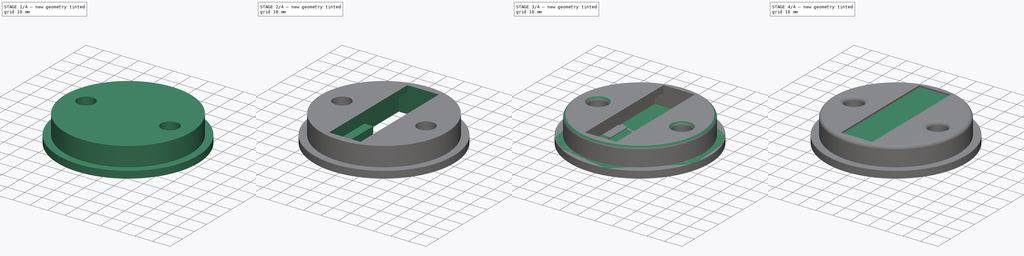
[diagram: build sequence overview — one tinted view per stage of 4, left to right]
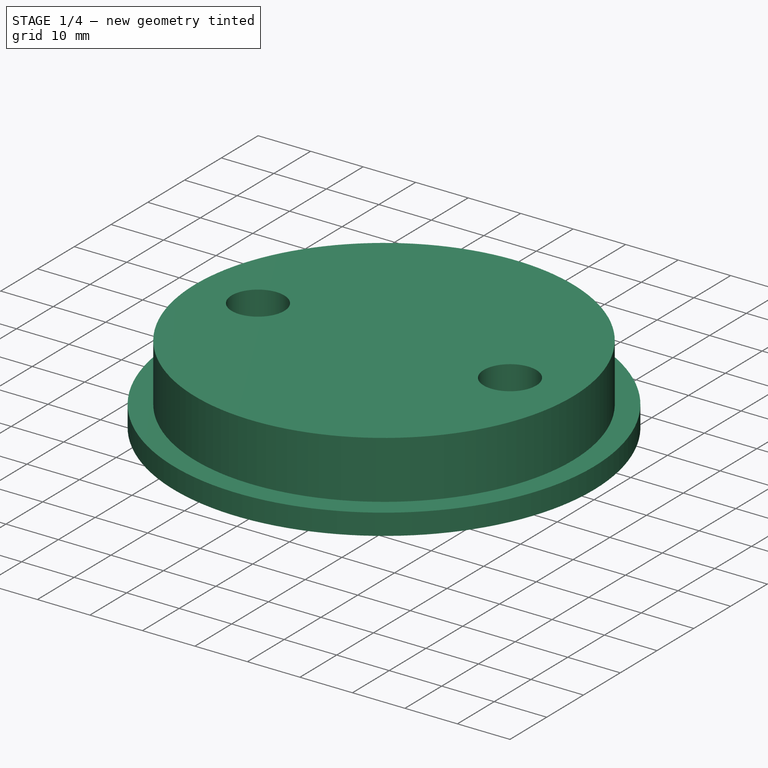
[diagram: stage 1 of 4 — iso view after this stage's code; geometry added in this stage tinted green]
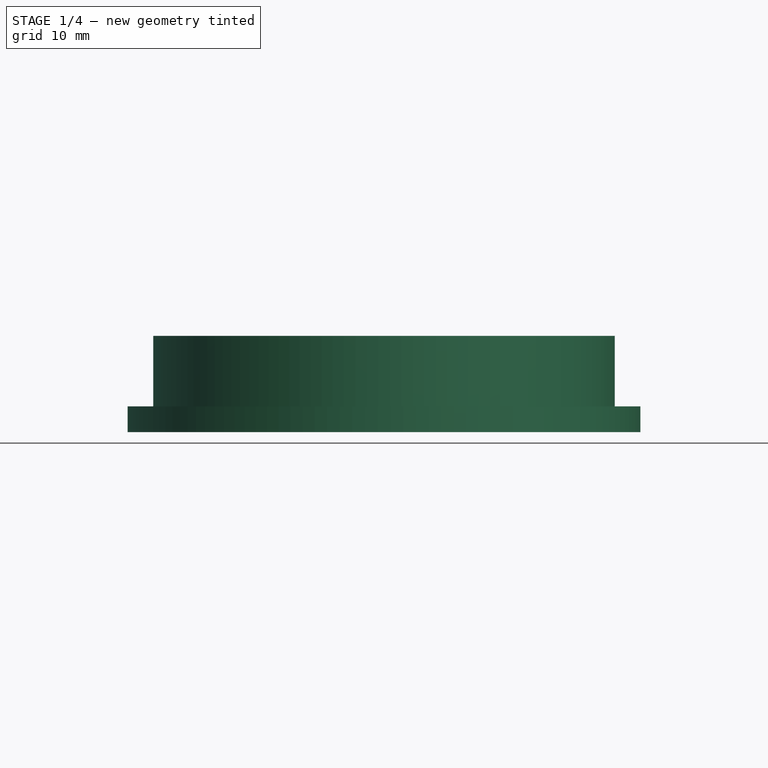
[diagram: stage 1 of 4 — front view after this stage's code; geometry added in this stage tinted green]
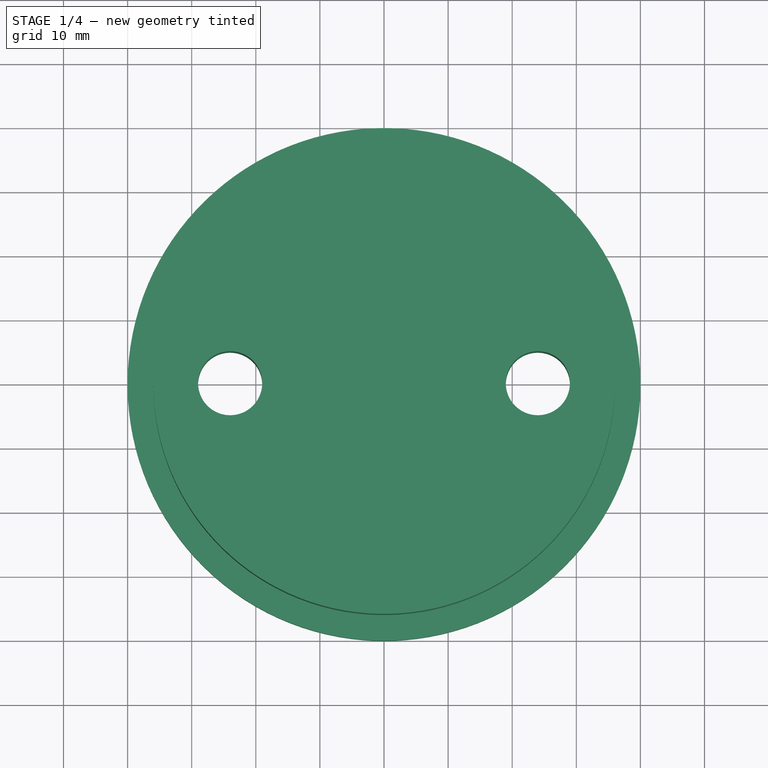
[diagram: stage 1 of 4 — top view after this stage's code; geometry added in this stage tinted green]
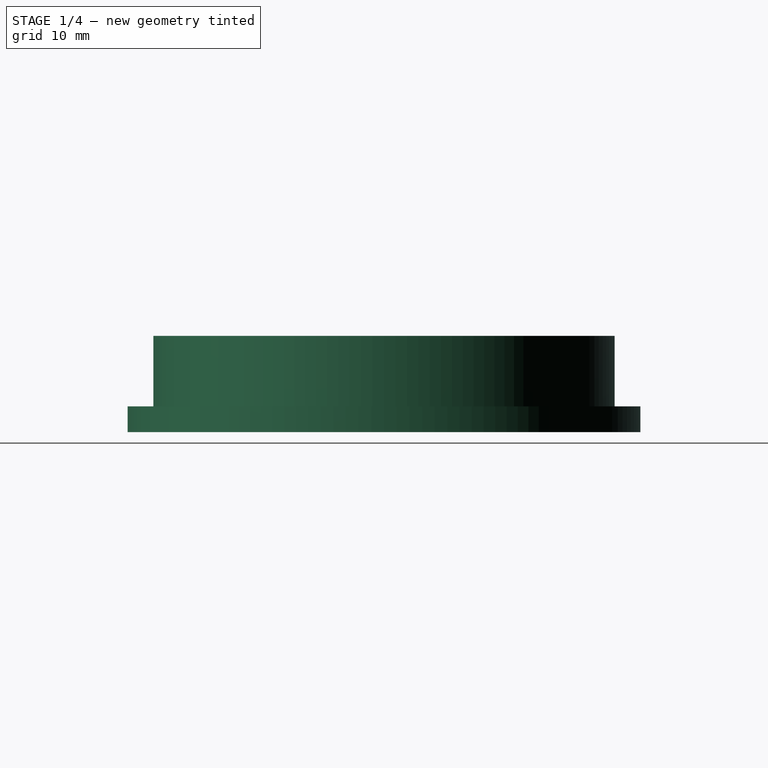
[diagram: stage 1 of 4 — right view after this stage's code; geometry added in this stage tinted green]
FCSTD DOCUMENT  (FreeCAD 0.21R33771 (Git))
Label: temperature-control-units-lids
License: All rights reserved
LicenseURL: https://en.wikipedia.org/wiki/All_rights_reserved
objects: Sketcher::SketchObject×9, PartDesign::Pocket×5, PartDesign::Pad×4, PartDesign::Fillet×2, PartDesign::Body×2, Spreadsheet::Sheet×1, PartDesign::Chamfer×1
note: 35 computed .brp shape members not serialized (recipe doc carries the construction recipe); baked Part::Feature solids carry a one-line shape summary decoded from their .brp

FEATURE [Sketcher::SketchObject] Sketch
  FullyConstrained = true
  MapMode = 5
  Support = -> [XY_Plane]
  expr: Constraints[1] = Spreadsheet.outerDiameter
  sketch-geometry (1):
    g0: Circle CenterX=0 CenterY=0 CenterZ=0 NormalX=0 NormalY=0 NormalZ=1 AngleXU=0 Radius=40
  constraints (2):
    c: Coincident(g0,g-1)
    c: Diameter(g0) = 80
FEATURE [PartDesign::Pad] Pad  label="Lid"
  Direction = (0,0,1)
  Length = 4
  Length2 = 10
  Profile = -> Sketch
  ReferenceAxis = -> Sketch [N_Axis]
  Type = 0
FEATURE [Sketcher::SketchObject] Sketch001
  FullyConstrained = true
  MapMode = 5
  Placement = pos=(0,0,4) rot=(0,0,1;0rad)
  Support = -> [Pad]
  expr: Constraints[1] = Spreadsheet.innerDiameter
  sketch-geometry (1):
    g0: Circle CenterX=0 CenterY=0 CenterZ=0 NormalX=0 NormalY=0 NormalZ=1 AngleXU=0 Radius=36
  constraints (2):
    c: Coincident(g0,g-1)
    c: Diameter(g0) = 72
FEATURE [PartDesign::Pad] Pad001  label="Column"
  BaseFeature = -> Pad
  Direction = (0,0,1)
  Length = 11
  Length2 = 10
  Profile = -> Sketch001
  ReferenceAxis = -> Sketch001 [N_Axis]
  Type = 0
FEATURE [PartDesign::Body] Body001  label="Cold Lid"
  Group = -> [Sketch002,Pad002,Sketch003,Pad003,Sketch004,Pocket,Fillet]
  Origin = -> Origin001
  Placement = pos=(100,0,0) rot=(0,0,1;0rad)
  Tip = -> Fillet
FEATURE [Spreadsheet::Sheet] Spreadsheet
  cells = C4='outerDiameter; D4(outerDiameter)=80; C5='innerDiameter; D5(innerDiameter)=72; C7='tubeHoleDiameter; D7(tubeHoleDiameter)=10; C9='heaterHoleOffset; D9(heaterHoleOffset)=0; C10='heaterHoleLength; D10(heaterHoleLength)=64; C11='heaterHoleWidth; D11(heaterHoleWidth)=18; C13='heaterHolderWidth; D13(heaterHolderWidth)=28; C14='heaterCatchWidth; D14(heaterCatchWidth)=22
FEATURE [Sketcher::SketchObject] Sketch005
  FullyConstrained = true
  MapMode = 5
  Placement = pos=(0,0,15) rot=(0,0,1;0rad)
  Support = -> [Pad001]
  expr: Constraints[2] = Spreadsheet.tubeHoleDiameter
  sketch-geometry (2):
    g0: Circle CenterX=-24 CenterY=0 CenterZ=0 NormalX=0 NormalY=0 NormalZ=1 AngleXU=0 Radius=5
    g1: Circle CenterX=24 CenterY=0 CenterZ=0 NormalX=0 NormalY=0 NormalZ=1 AngleXU=0 Radius=5
  constraints (5):
    c: PointOnObject(g0,g-1)
    c: Equal(g0,g1)
    c: Diameter(g0) = 10
    c: DistanceX(g0,g-1) = 24
    c: Symmetric(g0,g1,g-1)
FEATURE [PartDesign::Pocket] Pocket001  label="Tube Holes"
  BaseFeature = -> Pad001
  Direction = (0,0,-1)
  Length = 0
  Length2 = 5
  Profile = -> Sketch005
  ReferenceAxis = -> Sketch005 [N_Axis]
  Type = 2
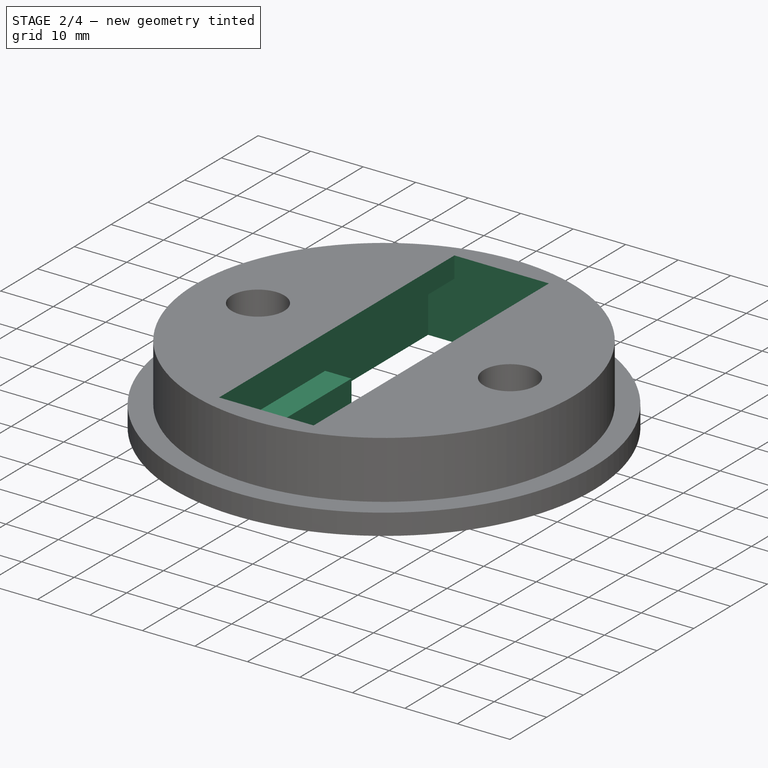
[diagram: stage 2 of 4 — iso view after this stage's code; geometry added in this stage tinted green]
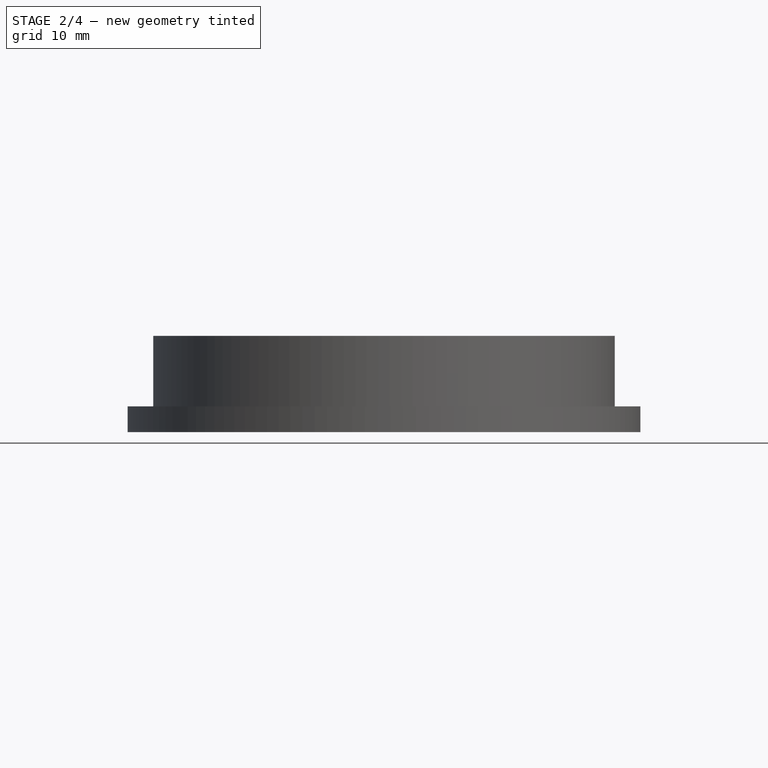
[diagram: stage 2 of 4 — front view after this stage's code; geometry added in this stage tinted green]
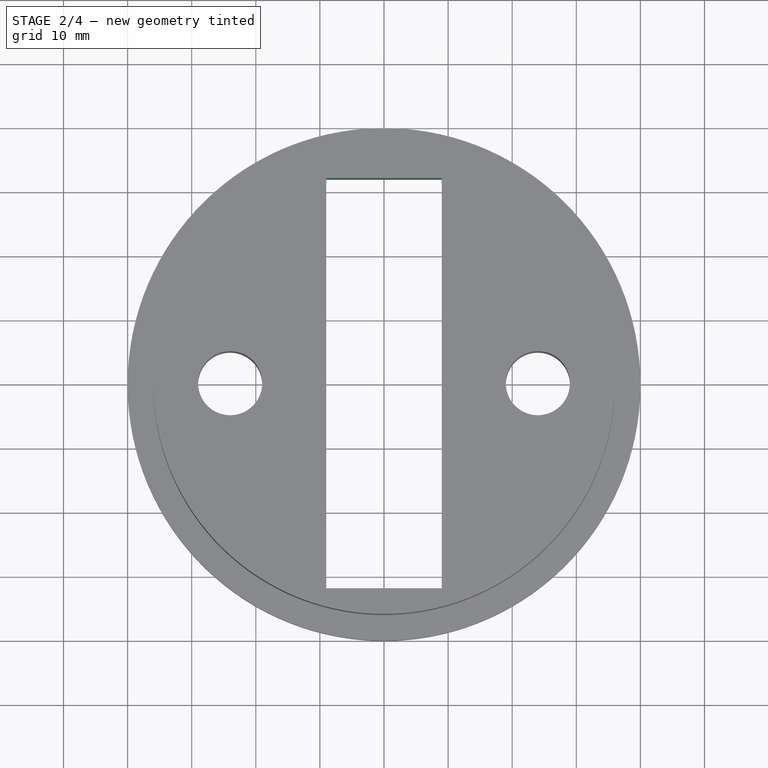
[diagram: stage 2 of 4 — top view after this stage's code; geometry added in this stage tinted green]
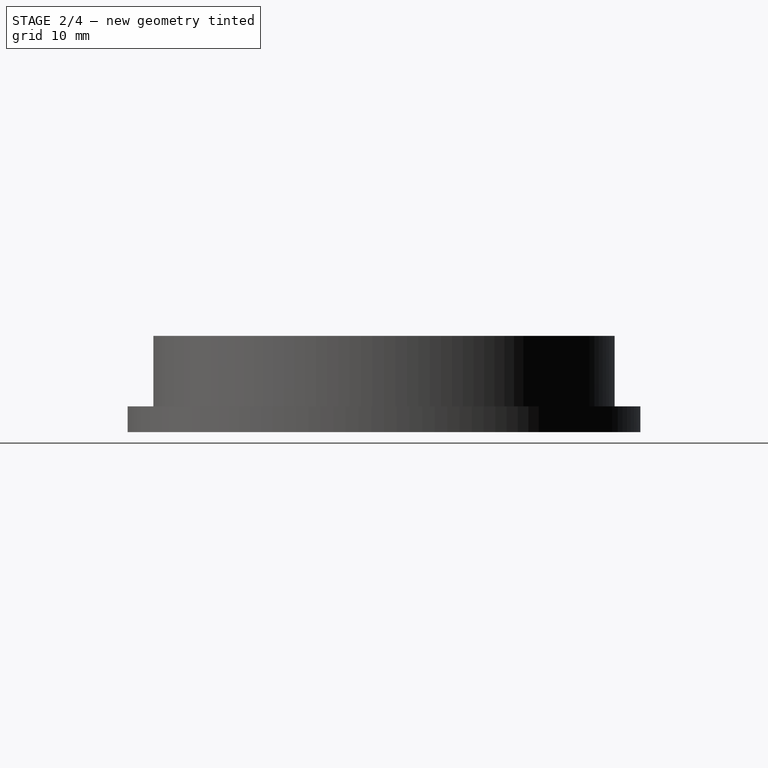
[diagram: stage 2 of 4 — right view after this stage's code; geometry added in this stage tinted green]
FEATURE [Sketcher::SketchObject] Sketch006
  FullyConstrained = true
  MapMode = 5
  Placement = pos=(0,0,15) rot=(0,0,1;0rad)
  Support = -> [Pocket001]
  expr: Constraints[7] = Spreadsheet.heaterHoleLength
  expr: Constraints[8] = Spreadsheet.heaterHoleWidth
  expr: Constraints[9] = Spreadsheet.heaterHoleLength / 2 - Spreadsheet.heaterHoleOffset
  sketch-geometry (4):
    g0: LineSegment StartX=-9 StartY=32 StartZ=0 EndX=9 EndY=32 EndZ=0
    g1: LineSegment StartX=9 StartY=32 StartZ=0 EndX=9 EndY=-32 EndZ=0
    g2: LineSegment StartX=9 StartY=-32 StartZ=0 EndX=-9 EndY=-32 EndZ=0
    g3: LineSegment StartX=-9 StartY=-32 StartZ=0 EndX=-9 EndY=32 EndZ=0
  constraints (11):
    c: Coincident(g0,g1)
    c: Coincident(g1,g2)
    c: Coincident(g2,g3)
    c: Coincident(g3,g0)
    c: Horizontal(g2)
    c: Vertical(g1)
    c: Vertical(g3)
    c: DistanceY(g1,g1) = 64
    c: DistanceX(g0,g0) = 18
    c: DistanceY(g-1,g0) = 32
    c: Symmetric(g0,g0,g-2)
FEATURE [PartDesign::Pocket] Pocket002  label="Heater Hole"
  BaseFeature = -> Pocket001
  Direction = (0,0,-1)
  Length = 5
  Length2 = 5
  Profile = -> Sketch006
  ReferenceAxis = -> Sketch006 [N_Axis]
  Type = 2
FEATURE [Sketcher::SketchObject] Sketch007
  FullyConstrained = true
  MapMode = 5
  Placement = pos=(0,0,0) rot=(1,0,0;3.14159rad)
  Support = -> [Pocket002]
  expr: Constraints[10] = Spreadsheet.heaterHoleLength / 2 - Spreadsheet.heaterHoleOffset
  expr: Constraints[7] = Spreadsheet.heaterHolderWidth
  expr: Constraints[8] = Spreadsheet.heaterHolderWidth
  sketch-geometry (4):
    g0: LineSegment StartX=-14 StartY=-4 StartZ=0 EndX=14 EndY=-4 EndZ=0
    g1: LineSegment StartX=14 StartY=-4 StartZ=0 EndX=14 EndY=-32 EndZ=0
    g2: LineSegment StartX=14 StartY=-32 StartZ=0 EndX=-14 EndY=-32 EndZ=0
    g3: LineSegment StartX=-14 StartY=-32 StartZ=0 EndX=-14 EndY=-4 EndZ=0
  constraints (11):
    c: Coincident(g0,g1)
    c: Coincident(g1,g2)
    c: Coincident(g2,g3)
    c: Coincident(g3,g0)
    c: Horizontal(g0)
    c: Vertical(g1)
    c: Vertical(g3)
    c: DistanceX(g0,g0) = 28
    c: DistanceY(g1,g1) = 28
    c: Symmetric(g2,g1,g-2)
    c: DistanceY(g2,g-1) = 32
FEATURE [PartDesign::Pocket] Pocket003  label="Holder Hole"
  BaseFeature = -> Pocket002
  Direction = (0,0,1)
  Length = 11
  Length2 = 5
  Profile = -> Sketch007
  ReferenceAxis = -> Sketch007 [N_Axis]
  Type = 0
FEATURE [Sketcher::SketchObject] Sketch008
  FullyConstrained = true
  MapMode = 5
  Placement = pos=(0,4,0) rot=(0,0.707107,0.707107;3.14159rad)
  Support = -> [Pocket003]
  expr: Constraints[7] = Spreadsheet.heaterHolderWidth
  sketch-geometry (4):
    g0: LineSegment StartX=14 StartY=11 StartZ=0 EndX=-14 EndY=11 EndZ=0
    g1: LineSegment StartX=-14 StartY=11 StartZ=0 EndX=-14 EndY=4.5 EndZ=0
    g2: LineSegment StartX=-14 StartY=4.5 StartZ=0 EndX=14 EndY=4.5 EndZ=0
    g3: LineSegment StartX=14 StartY=4.5 StartZ=0 EndX=14 EndY=11 EndZ=0
  constraints (11):
    c: Coincident(g0,g1)
    c: Coincident(g1,g2)
    c: Coincident(g2,g3)
    c: Coincident(g3,g0)
    c: Horizontal(g2)
    c: Vertical(g1)
    c: Vertical(g3)
    c: DistanceX(g2,g2) = 28
    c: DistanceY(g3,g3) = 6.5
    c: Symmetric(g0,g0,g-2)
    c: DistanceY(g-1,g1) = 4.5
FEATURE [PartDesign::Pocket] Pocket004  label="Holder Catch"
  BaseFeature = -> Pocket003
  Direction = (0,-1,2e-16)
  Length = 5
  Length2 = 5
  Profile = -> Sketch008
  ReferenceAxis = -> Sketch008 [N_Axis]
  Type = 2
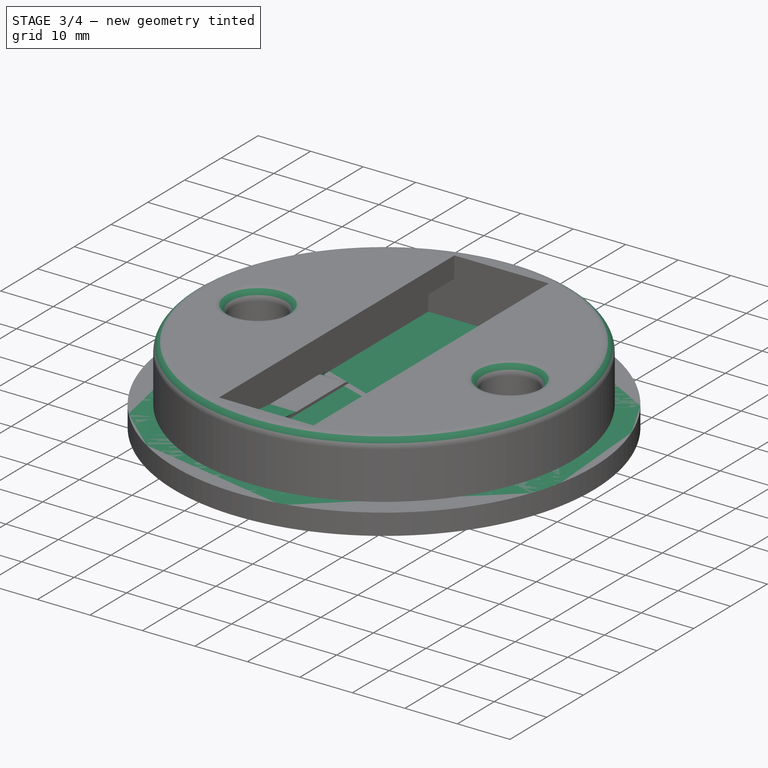
[diagram: stage 3 of 4 — iso view after this stage's code; geometry added in this stage tinted green]
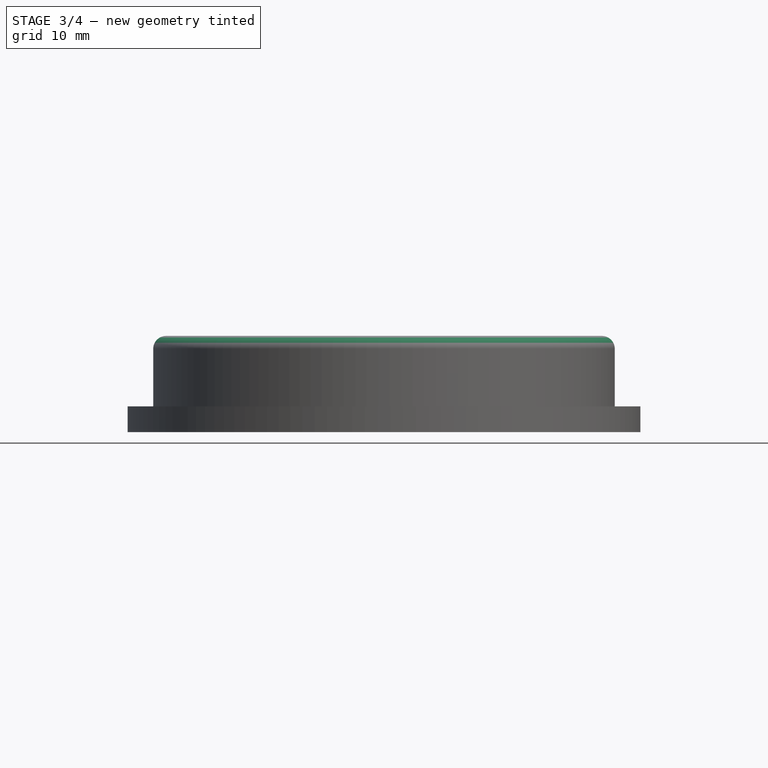
[diagram: stage 3 of 4 — front view after this stage's code; geometry added in this stage tinted green]
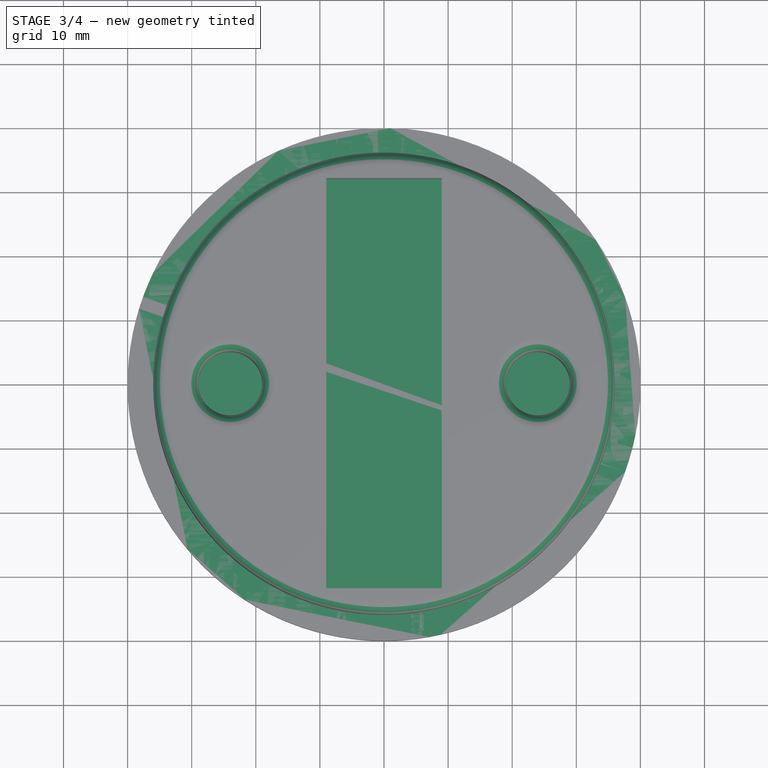
[diagram: stage 3 of 4 — top view after this stage's code; geometry added in this stage tinted green]
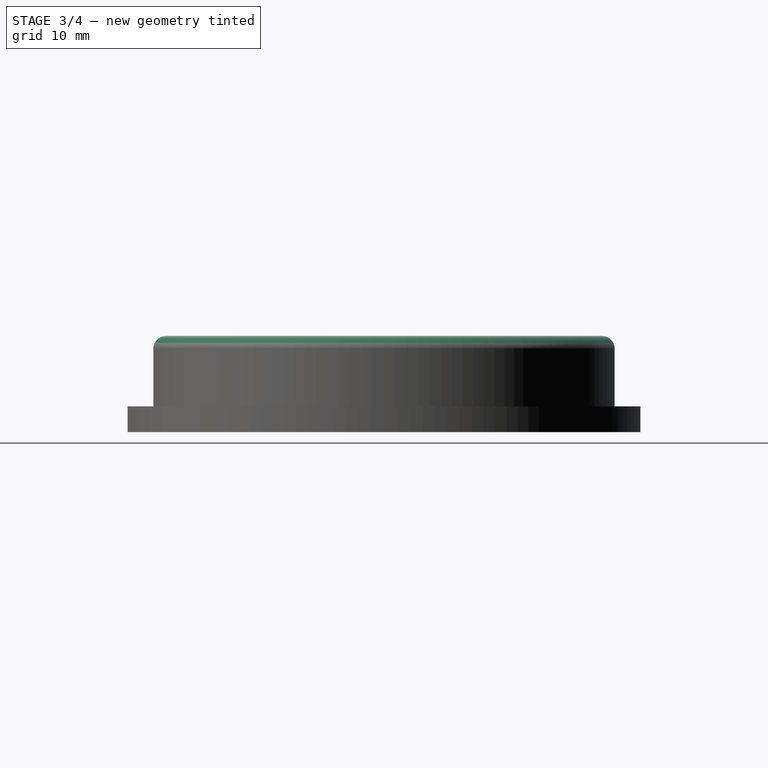
[diagram: stage 3 of 4 — right view after this stage's code; geometry added in this stage tinted green]
FEATURE [Sketcher::SketchObject] Sketch002
  FullyConstrained = true
  MapMode = 5
  Support = -> [XY_Plane001]
  expr: Constraints[1] = Spreadsheet.outerDiameter
  sketch-geometry (1):
    g0: Circle CenterX=0 CenterY=0 CenterZ=0 NormalX=0 NormalY=0 NormalZ=1 AngleXU=0 Radius=40
  constraints (2):
    c: Coincident(g0,g-1)
    c: Diameter(g0) = 80
FEATURE [PartDesign::Pad] Pad002
  Direction = (0,0,1)
  Length = 4
  Length2 = 10
  Profile = -> Sketch002
  ReferenceAxis = -> Sketch002 [N_Axis]
  Type = 0
FEATURE [PartDesign::Chamfer] Chamfer
  Angle = 45
  Base = -> Pocket004 [Edge65,Edge52]
  BaseFeature = -> Pocket004
  ChamferType = 1
  FlipDirection = false
  Size = 21
  Size2 = 2
  SupportTransform = false
  UseAllEdges = false
FEATURE [PartDesign::Fillet] Fillet001
  Base = -> Chamfer [Edge18,Edge41,Edge68,Edge19,Edge26,Edge25,Edge12,Edge21,Edge55,Edge7,Edge20,Edge27,Edge3,Edge43,Edge23,Edge24,Edge22]
  BaseFeature = -> Chamfer
  Radius = 2
  SupportTransform = false
  UseAllEdges = false
FEATURE [PartDesign::Body] Body  label="Hot Lid"
  Group = -> [Sketch,Pad,Sketch001,Pad001,Sketch005,Pocket001,Sketch006,Pocket002,Sketch007,Pocket003,Sketch008,Pocket004,Chamfer,Fillet001]
  Origin = -> Origin
  Tip = -> Fillet001
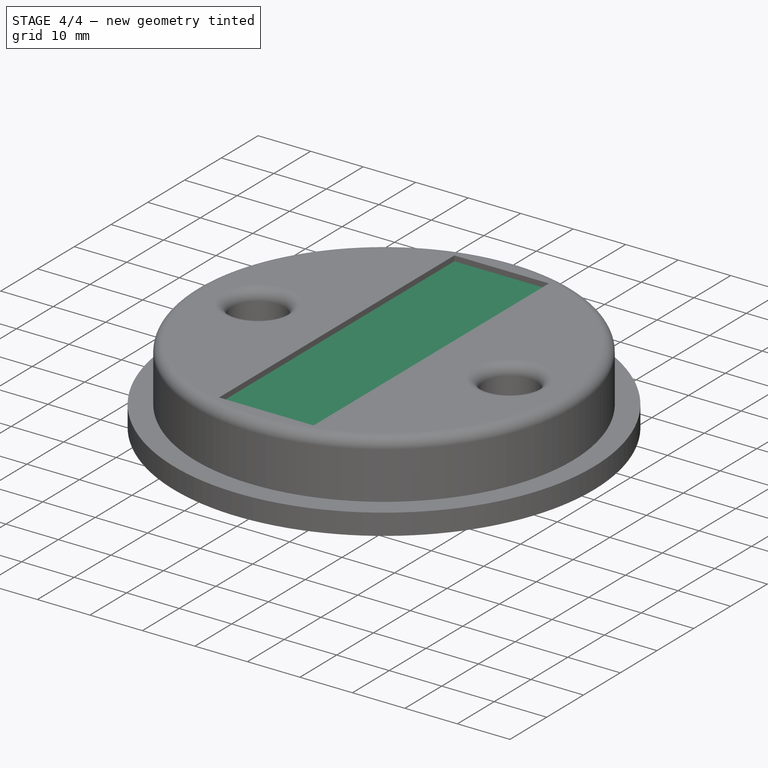
[diagram: stage 4 of 4 — iso view after this stage's code; geometry added in this stage tinted green]
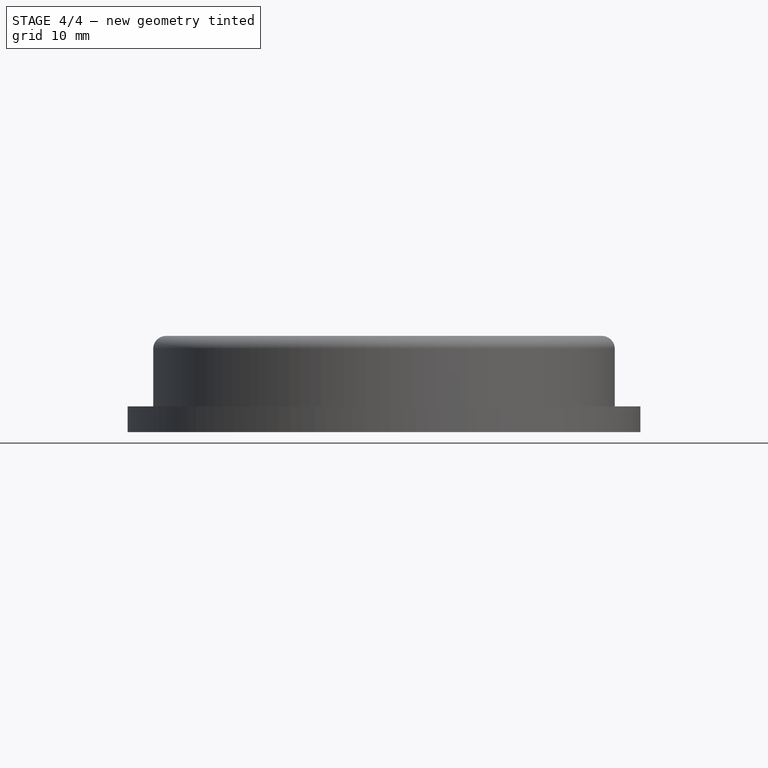
[diagram: stage 4 of 4 — front view after this stage's code; geometry added in this stage tinted green]
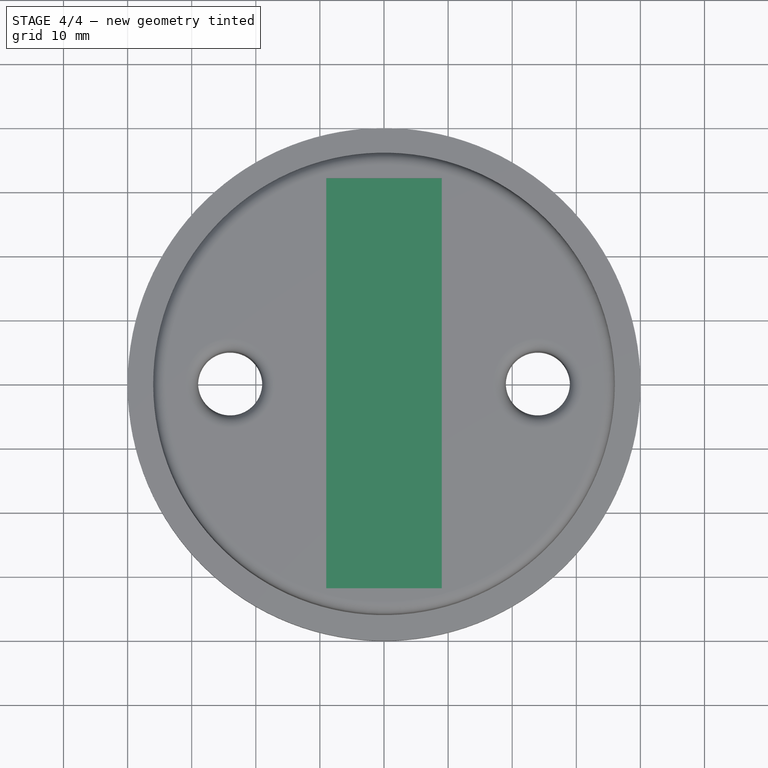
[diagram: stage 4 of 4 — top view after this stage's code; geometry added in this stage tinted green]
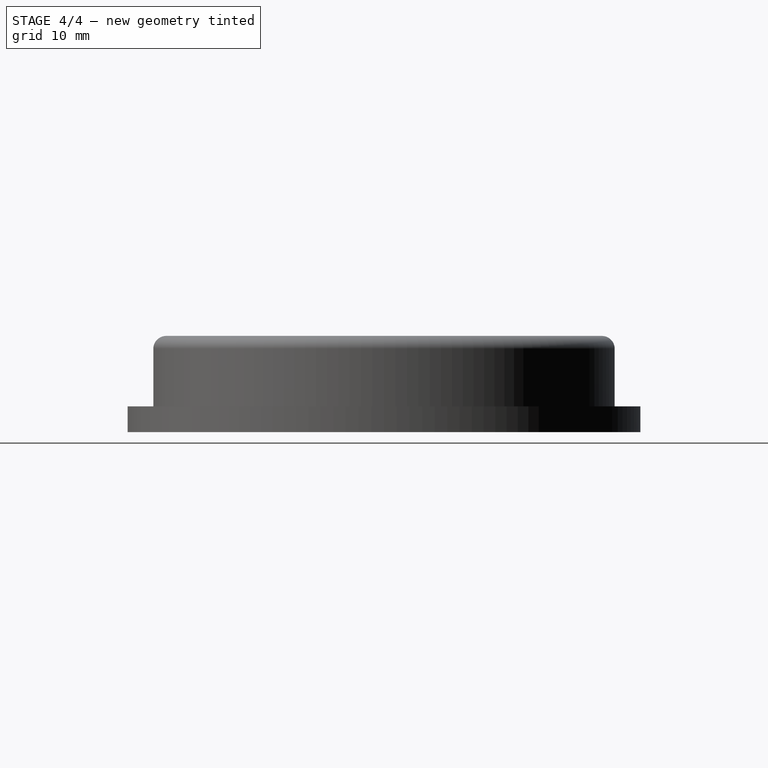
[diagram: stage 4 of 4 — right view after this stage's code; geometry added in this stage tinted green]
FEATURE [Sketcher::SketchObject] Sketch003
  FullyConstrained = true
  MapMode = 5
  Placement = pos=(0,0,4) rot=(0,0,1;0rad)
  Support = -> [Pad002]
  expr: Constraints[1] = Spreadsheet.innerDiameter
  sketch-geometry (1):
    g0: Circle CenterX=0 CenterY=0 CenterZ=0 NormalX=0 NormalY=0 NormalZ=1 AngleXU=0 Radius=36
  constraints (2):
    c: Coincident(g0,g-1)
    c: Diameter(g0) = 72
FEATURE [PartDesign::Pad] Pad003
  BaseFeature = -> Pad002
  Direction = (0,0,1)
  Length = 10
  Length2 = 10
  Profile = -> Sketch003
  ReferenceAxis = -> Sketch003 [N_Axis]
  Type = 0
FEATURE [Sketcher::SketchObject] Sketch004
  FullyConstrained = true
  MapMode = 5
  Placement = pos=(0,0,14) rot=(0,0,1;0rad)
  Support = -> [Pad003]
  expr: Constraints[2] = Spreadsheet.tubeHoleDiameter
  sketch-geometry (2):
    g0: Circle CenterX=24 CenterY=0 CenterZ=0 NormalX=0 NormalY=0 NormalZ=1 AngleXU=0 Radius=5
    g1: Circle CenterX=-24 CenterY=0 CenterZ=0 NormalX=0 NormalY=0 NormalZ=1 AngleXU=0 Radius=5
  constraints (5):
    c: PointOnObject(g0,g-1)
    c: Equal(g0,g1)
    c: Diameter(g0) = 10
    c: Symmetric(g0,g1,g-1)
    c: DistanceX(g1,g-1) = 24
FEATURE [PartDesign::Pocket] Pocket
  BaseFeature = -> Pad003
  Direction = (0,0,-1)
  Length = 20
  Length2 = 5
  Profile = -> Sketch004
  ReferenceAxis = -> Sketch004 [N_Axis]
  Type = 0
FEATURE [PartDesign::Fillet] Fillet
  Base = -> Pocket [Edge7,Edge9,Edge12,Edge2,Edge4,Edge5]
  BaseFeature = -> Pocket
  Radius = 1
  SupportTransform = false
  UseAllEdges = false
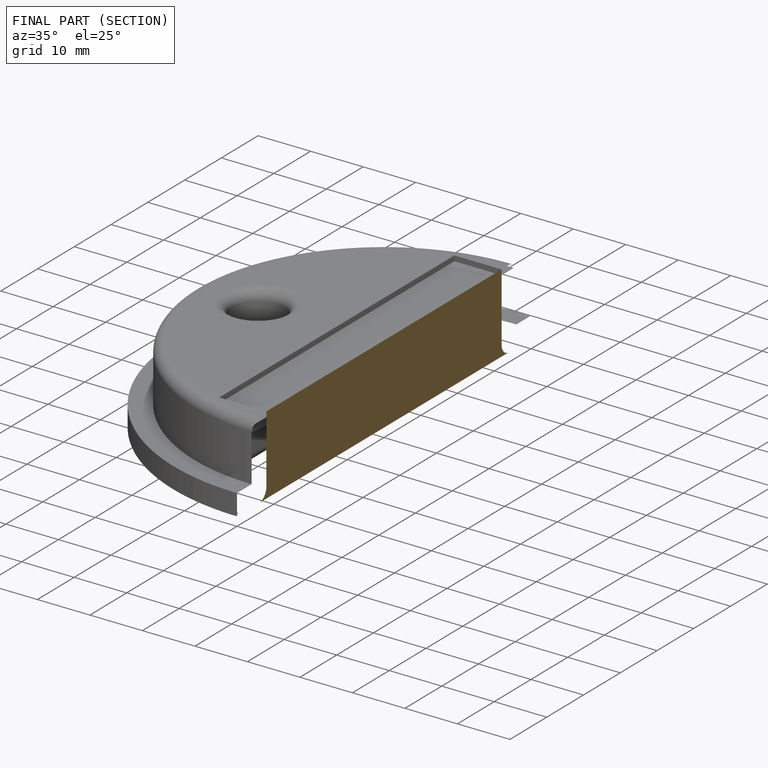
[diagram: finished part — half-section view (interior)]
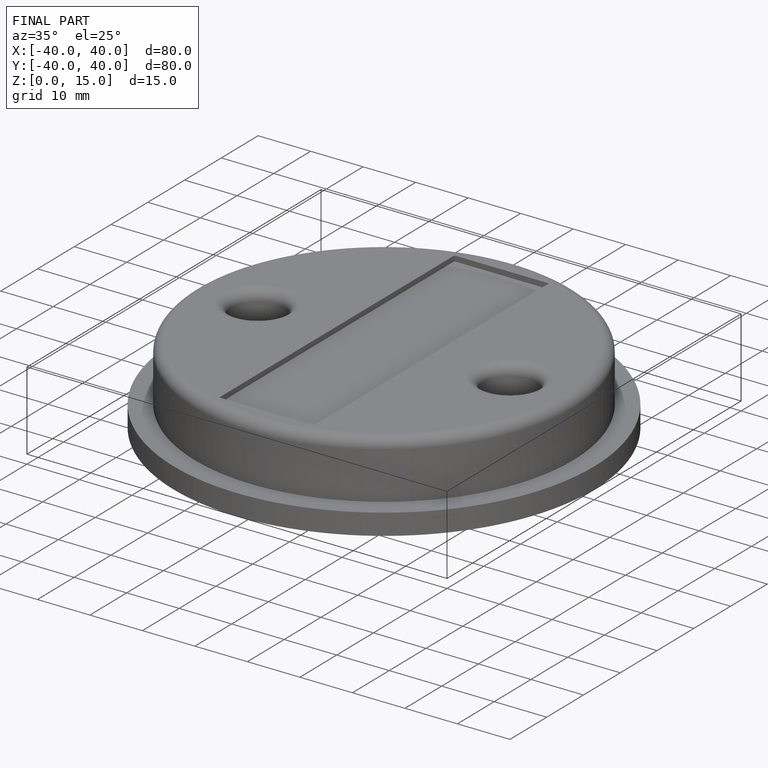
[diagram: finished part — iso view with bounding-box wireframe]
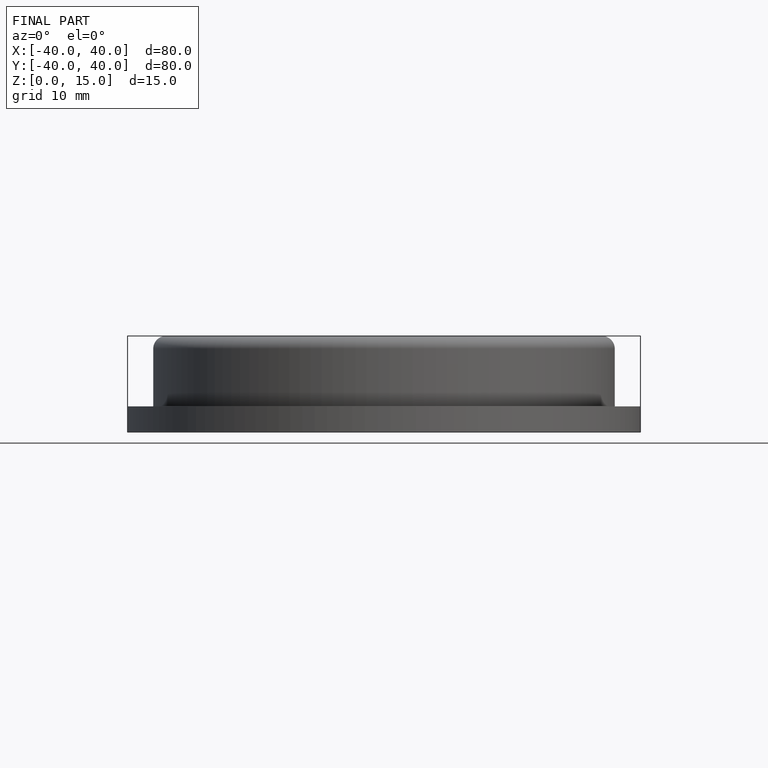
[diagram: finished part — front view with bounding-box wireframe]
